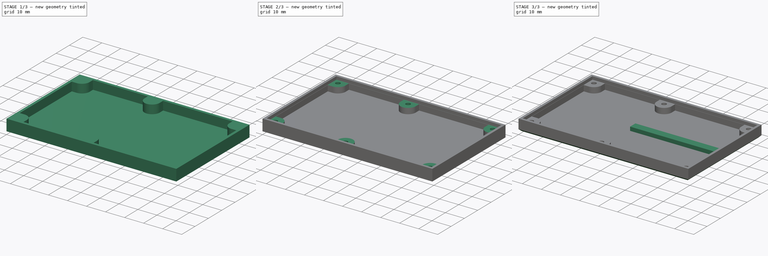
[diagram: build sequence overview — one tinted view per stage of 3, left to right]
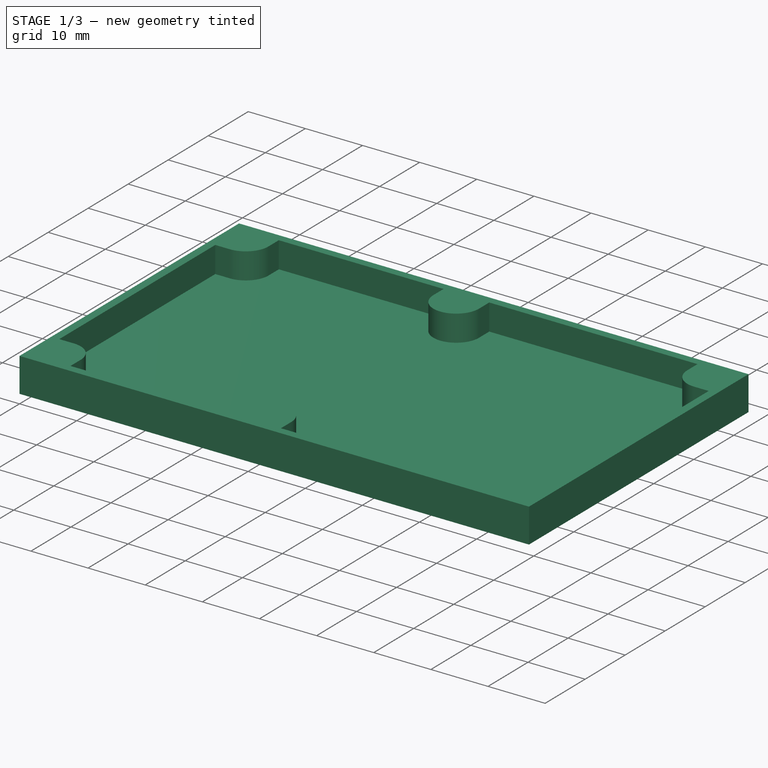
[diagram: stage 1 of 3 — iso view after this stage's code; geometry added in this stage tinted green]
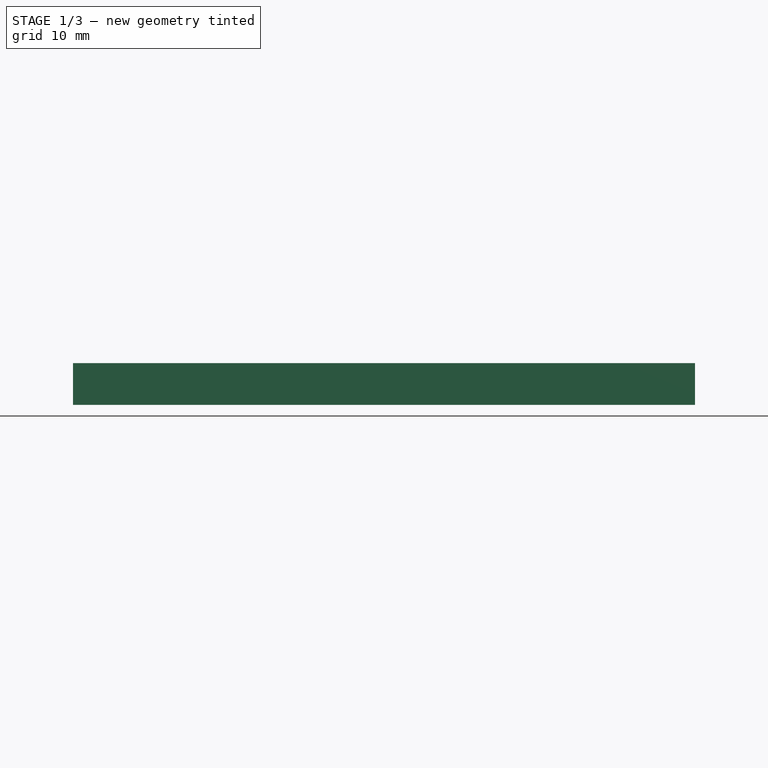
[diagram: stage 1 of 3 — front view after this stage's code; geometry added in this stage tinted green]
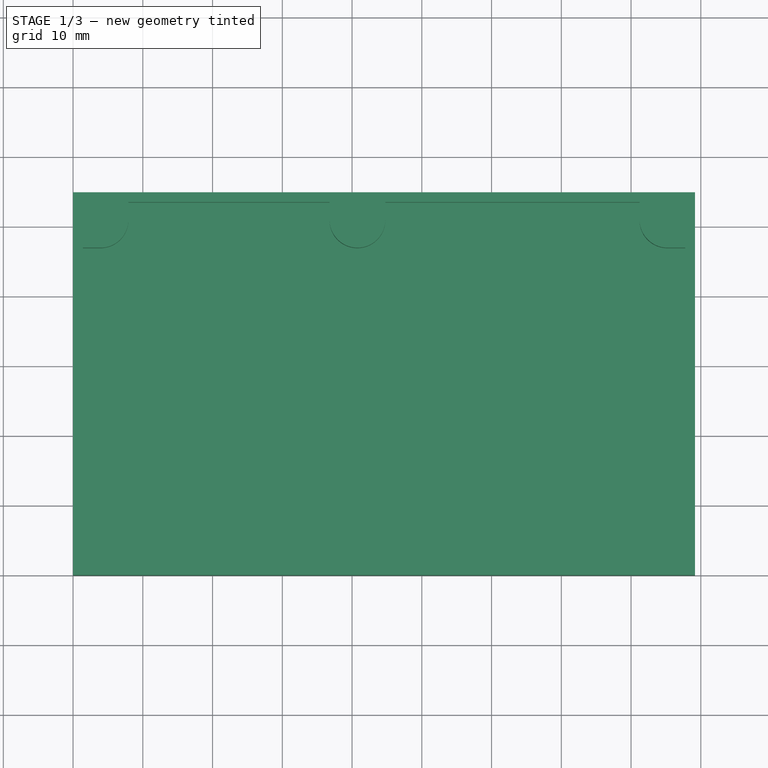
[diagram: stage 1 of 3 — top view after this stage's code; geometry added in this stage tinted green]
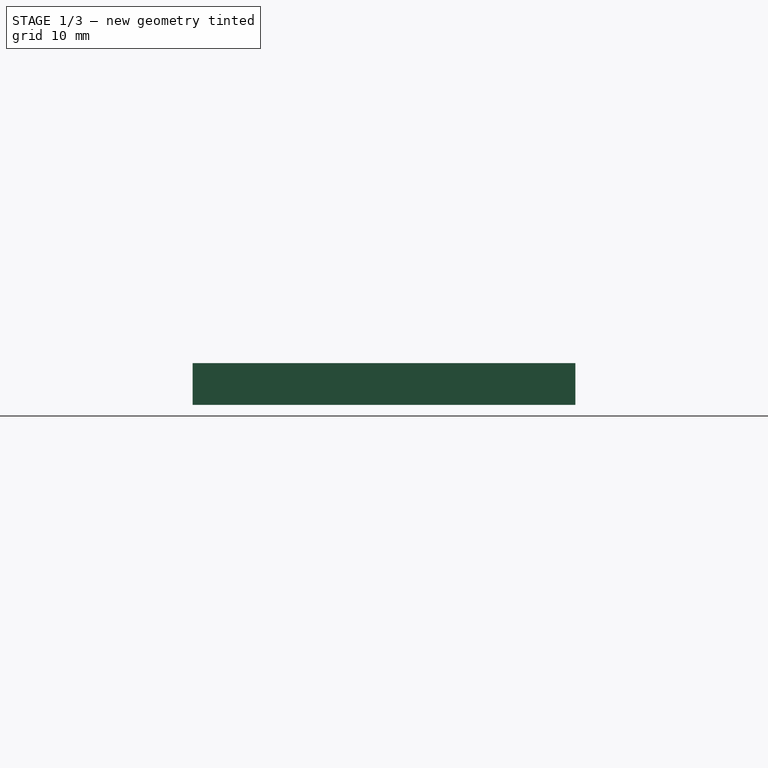
[diagram: stage 1 of 3 — right view after this stage's code; geometry added in this stage tinted green]
FCSTD DOCUMENT  (FreeCAD 0.16R6703 (Git))
Label: OneSLipoCaseBottom
License: All rights reserved
LicenseURL: http://en.wikipedia.org/wiki/All_rights_reserved
objects: Sketcher::SketchObject×6, PartDesign::Pocket×4, PartDesign::Pad×2, PartDesign::Chamfer×1
note: 19 computed .brp shape members not serialized (recipe doc carries the construction recipe); baked Part::Feature solids carry a one-line shape summary decoded from their .brp

FEATURE [Sketcher::SketchObject] Sketch
  sketch-geometry (4):
    g0: LineSegment StartX=0 StartY=0 StartZ=0 EndX=89.16 EndY=0 EndZ=0
    g1: LineSegment StartX=89.16 StartY=0 StartZ=0 EndX=89.16 EndY=54.87 EndZ=0
    g2: LineSegment StartX=89.16 StartY=54.87 StartZ=0 EndX=0 EndY=54.87 EndZ=0
    g3: LineSegment StartX=0 StartY=54.87 StartZ=0 EndX=0 EndY=0 EndZ=0
  constraints (11):
    c: Coincident(g0,g1)
    c: Coincident(g1,g2)
    c: Coincident(g2,g3)
    c: Coincident(g3,g0)
    c: Horizontal(g0)
    c: Horizontal(g2)
    c: Vertical(g1)
    c: Vertical(g3)
    c: Coincident(g0,g-1)
    c: DistanceX(g2,g2) = 89.16
    c: DistanceY(g1,g1) = 54.87
FEATURE [PartDesign::Pad] Pad
  Length = 6
  Length2 = 100
  Sketch = -> Sketch
  Type = 0
FEATURE [Sketcher::SketchObject] Sketch001
  Placement = pos=(0,0,6) rot=(0,0,1;0rad)
  Support = -> Pad [Face6]
  sketch-geometry (57):
    g0: ArcOfCircle CenterX=3.94 CenterY=50.93 CenterZ=0 NormalX=0 NormalY=0 NormalZ=1 Radius=4 StartAngle=4.71239 EndAngle=6.28319
    g1: ArcOfCircle CenterX=3.94 CenterY=3.94 CenterZ=0 NormalX=0 NormalY=0 NormalZ=1 Radius=4 StartAngle=0 EndAngle=1.5708
    g2: ArcOfCircle CenterX=40.77 CenterY=3.94 CenterZ=0 NormalX=0 NormalY=0 NormalZ=1 Radius=4 StartAngle=0 EndAngle=3.14159
    g3: ArcOfCircle CenterX=40.77 CenterY=50.93 CenterZ=0 NormalX=0 NormalY=0 NormalZ=1 Radius=4 StartAngle=3.14159 EndAngle=6.28319
    g4: ArcOfCircle CenterX=85.22 CenterY=50.93 CenterZ=0 NormalX=0 NormalY=0 NormalZ=1 Radius=4 StartAngle=3.14159 EndAngle=4.71239
    g5: ArcOfCircle CenterX=85.22 CenterY=3.94 CenterZ=0 NormalX=0 NormalY=0 NormalZ=1 Radius=4 StartAngle=1.5708 EndAngle=3.14159
    g6: LineSegment [constr] StartX=3.94 StartY=50.93 StartZ=0 EndX=7.94 EndY=50.93 EndZ=0
    g7: LineSegment [constr] StartX=7.94 StartY=50.93 StartZ=0 EndX=36.77 EndY=50.93 EndZ=0
    g8: LineSegment [constr] StartX=36.77 StartY=50.93 StartZ=0 EndX=40.77 EndY=50.93 EndZ=0
    g9: LineSegment [constr] StartX=40.77 StartY=50.93 StartZ=0 EndX=44.77 EndY=50.93 EndZ=0
    g10: LineSegment [constr] StartX=44.77 StartY=50.93 StartZ=0 EndX=81.22 EndY=50.93 EndZ=0
    g11: LineSegment [constr] StartX=81.22 StartY=50.93 StartZ=0 EndX=85.22 EndY=50.93 EndZ=0
    g12: LineSegment [constr] StartX=85.22 StartY=50.93 StartZ=0 EndX=85.22 EndY=46.93 EndZ=0
    g13: LineSegment [constr] StartX=85.22 StartY=46.93 StartZ=0 EndX=85.22 EndY=7.94 EndZ=0
    g14: LineSegment [constr] StartX=85.22 StartY=7.94 StartZ=0 EndX=85.22 EndY=3.94 EndZ=0
    g15: LineSegment [constr] StartX=85.22 StartY=3.94 StartZ=0 EndX=81.22 EndY=3.94 EndZ=0
    g16: LineSegment [constr] StartX=81.22 StartY=3.94 StartZ=0 EndX=44.77 EndY=3.94 EndZ=0
    g17: LineSegment [constr] StartX=44.77 StartY=3.94 StartZ=0 EndX=40.77 EndY=3.94 EndZ=0
    g18: LineSegment [constr] StartX=40.77 StartY=3.94 StartZ=0 EndX=36.77 EndY=3.94 EndZ=0
    g19: LineSegment [constr] StartX=36.77 StartY=3.94 StartZ=0 EndX=7.94 EndY=3.94 EndZ=0
    g20: LineSegment [constr] StartX=7.94 StartY=3.94 StartZ=0 EndX=3.94 EndY=3.94 EndZ=0
    g21: LineSegment [constr] StartX=3.94 StartY=3.94 StartZ=0 EndX=3.94 EndY=7.94 EndZ=0
    g22: LineSegment [constr] StartX=3.94 StartY=7.94 StartZ=0 EndX=3.94 EndY=46.93 EndZ=0
    g23: LineSegment [constr] StartX=3.94 StartY=46.93 StartZ=0 EndX=3.94 EndY=50.93 EndZ=0
    g24: LineSegment [constr] StartX=3.94 StartY=50.93 StartZ=0 EndX=1.4 EndY=50.93 EndZ=0
    g25: LineSegment [constr] StartX=1.4 StartY=50.93 StartZ=0 EndX=0 EndY=50.93 EndZ=0
    g26: LineSegment [constr] StartX=3.94 StartY=3.94 StartZ=0 EndX=3.94 EndY=1.4 EndZ=0
    g27: LineSegment [constr] StartX=3.94 StartY=1.4 StartZ=0 EndX=3.94 EndY=0 EndZ=0
    g28: LineSegment StartX=7.94 StartY=50.93 StartZ=0 EndX=7.94 EndY=53.47 EndZ=0
    g29: LineSegment StartX=7.94 StartY=53.47 StartZ=0 EndX=36.77 EndY=53.47 EndZ=0
    g30: LineSegment StartX=36.77 StartY=53.47 StartZ=0 EndX=36.77 EndY=50.93 EndZ=0
    g31: LineSegment StartX=7.94 StartY=3.94 StartZ=0 EndX=7.94 EndY=1.4 EndZ=0
    g32: LineSegment StartX=7.94 StartY=1.4 StartZ=0 EndX=36.77 EndY=1.4 EndZ=0
    g33: LineSegment StartX=36.77 StartY=1.4 StartZ=0 EndX=36.77 EndY=3.94 EndZ=0
    g34: LineSegment StartX=44.77 StartY=3.94 StartZ=0 EndX=44.77 EndY=1.4 EndZ=0
    g35: LineSegment StartX=44.77 StartY=1.4 StartZ=0 EndX=81.22 EndY=1.4 EndZ=0
    g36: LineSegment StartX=81.22 StartY=1.4 StartZ=0 EndX=81.22 EndY=3.94 EndZ=0
    g37: LineSegment StartX=3.94 StartY=46.93 StartZ=0 EndX=1.4 EndY=46.93 EndZ=0
    g38: LineSegment StartX=1.4 StartY=46.93 StartZ=0 EndX=1.4 EndY=7.94 EndZ=0
    g39: LineSegment StartX=1.4 StartY=7.94 StartZ=0 EndX=3.94 EndY=7.94 EndZ=0
    g40: LineSegment StartX=44.77 StartY=50.93 StartZ=0 EndX=44.77 EndY=53.47 EndZ=0
    g41: LineSegment StartX=44.77 StartY=53.47 StartZ=0 EndX=81.22 EndY=53.47 EndZ=0
    g42: LineSegment StartX=81.22 StartY=53.47 StartZ=0 EndX=81.22 EndY=50.93 EndZ=0
    g43: LineSegment StartX=85.22 StartY=46.93 StartZ=0 EndX=87.76 EndY=46.93 EndZ=0
    g44: LineSegment StartX=87.76 StartY=46.93 StartZ=0 EndX=87.76 EndY=7.94 EndZ=0
    g45: LineSegment StartX=87.76 StartY=7.94 StartZ=0 EndX=85.22 EndY=7.94 EndZ=0
    g46: LineSegment [constr] StartX=36.77 StartY=53.47 StartZ=0 EndX=44.77 EndY=53.47 EndZ=0
    g47: LineSegment [constr] StartX=44.77 StartY=1.4 StartZ=0 EndX=36.77 EndY=1.4 EndZ=0
    g48: LineSegment [constr] StartX=81.22 StartY=53.47 StartZ=0 EndX=87.76 EndY=53.47 EndZ=0
    g49: LineSegment [constr] StartX=87.76 StartY=53.47 StartZ=0 EndX=87.76 EndY=46.93 EndZ=0
    g50: LineSegment [constr] StartX=87.76 StartY=7.94 StartZ=0 EndX=87.76 EndY=1.4 EndZ=0
    g51: LineSegment [constr] StartX=87.76 StartY=1.4 StartZ=0 EndX=81.22 EndY=1.4 EndZ=0
    g52: LineSegment [constr] StartX=7.94 StartY=1.4 StartZ=0 EndX=1.4 EndY=1.4 EndZ=0
    g53: LineSegment [constr] StartX=1.4 StartY=7.94 StartZ=0 EndX=1.4 EndY=1.4 EndZ=0
    g54: LineSegment [constr] StartX=1.4 StartY=46.93 StartZ=0 EndX=1.4 EndY=53.47 EndZ=0
    g55: LineSegment [constr] StartX=1.4 StartY=53.47 StartZ=0 EndX=7.94 EndY=53.47 EndZ=0
    g56: LineSegment [constr] StartX=40.77 StartY=50.93 StartZ=0 EndX=40.77 EndY=3.94 EndZ=0
  constraints (153):
    c: Coincident(g6,g0)
    c: Coincident(g6,g0)
    c: Coincident(g6,g7)
    c: Coincident(g7,g3)
    c: Horizontal(g7)
    c: Coincident(g7,g8)
    c: Coincident(g8,g3)
    c: Horizontal(g8)
    c: Coincident(g8,g9)
    c: Coincident(g9,g3)
    c: Coincident(g9,g10)
    c: Coincident(g10,g4)
    c: Horizontal(g10)
    c: Coincident(g10,g11)
    c: Coincident(g11,g4)
    c: Horizontal(g11)
    c: Coincident(g11,g12)
    c: Coincident(g12,g4)
    c: Vertical(g12)
    c: Coincident(g12,g13)
    c: Coincident(g13,g5)
    c: Vertical(g13)
    c: Coincident(g13,g14)
    c: Coincident(g14,g5)
    c: Vertical(g14)
    c: Coincident(g14,g15)
    c: Coincident(g15,g5)
    c: Horizontal(g15)
    c: Coincident(g15,g16)
    c: Coincident(g16,g2)
    c: Coincident(g16,g17)
    c: Coincident(g17,g2)
    c: Coincident(g17,g18)
    c: Coincident(g18,g2)
    c: Coincident(g18,g19)
    c: Coincident(g19,g1)
    c: Horizontal(g19)
    c: Coincident(g19,g20)
    c: Coincident(g20,g1)
    c: Coincident(g20,g21)
    c: Coincident(g21,g1)
    c: Coincident(g21,g22)
    c: Coincident(g22,g0)
    c: Vertical(g22)
    c: Coincident(g22,g23)
    c: Coincident(g23,g6)
    c: Vertical(g23)
    c: Vertical(g21)
    c: Horizontal(g6)
    c: Horizontal(g9)
    c: Horizontal(g16)
    c: Horizontal(g17)
    c: Horizontal(g18)
    c: Horizontal(g20)
    c: Equal(g0,g3)
    c: Equal(g3,g4)
    c: Equal(g4,g5)
    c: Equal(g5,g2)
    c: Equal(g2,g1)
    c: Coincident(g24,g0)
    c: Horizontal(g24)
    c: Coincident(g25,g24)
    c: PointOnObject(g25,g-2)
    c: Horizontal(g25)
    c: DistanceX(g25,g25) = 1.4
    c: DistanceX(g24,g24) = 2.54
    c: DistanceX(g24,g3) = 39.37
    c: DistanceX(g24,g4) = 83.82
    c: Coincident(g26,g1)
    c: Vertical(g26)
    c: PointOnObject(g27,g-1)
    c: Vertical(g27)
    c: Coincident(g26,g27)
    c: DistanceY(g26,g26) = 2.54
    c: DistanceY(g26,g0) = 49.53
    c: Coincident(g28,g29)
    c: Horizontal(g29)
    c: Coincident(g29,g30)
    c: Coincident(g30,g3)
    c: Vertical(g30)
    c: Vertical(g28)
    c: Vertical(g31)
    c: Coincident(g31,g32)
    c: Horizontal(g32)
    c: Coincident(g32,g33)
    c: Coincident(g33,g2)
    c: Coincident(g31,g1)
    c: Vertical(g33)
    c: Vertical(g34)
    c: Coincident(g34,g35)
    c: Horizontal(g35)
    c: Coincident(g35,g36)
    c: Coincident(g36,g5)
    c: Vertical(g36)
    c: Coincident(g34,g2)
    c: Horizontal(g37)
    c: Coincident(g37,g38)
    c: Vertical(g38)
    c: Coincident(g38,g39)
    c: Coincident(g39,g1)
    c: Horizontal(g39)
    c: Coincident(g37,g0)
    c: Vertical(g40)
    c: Coincident(g40,g41)
    c: Horizontal(g41)
    c: Coincident(g41,g42)
    c: Coincident(g42,g4)
    c: Vertical(g42)
    c: Coincident(g40,g3)
    c: Horizontal(g43)
    c: Coincident(g43,g44)
    c: Vertical(g44)
    c: Coincident(g44,g45)
    c: Coincident(g45,g5)
    c: Horizontal(g45)
    c: Coincident(g43,g4)
    c: Coincident(g46,g29)
    c: Coincident(g46,g40)
    c: Horizontal(g46)
    c: Coincident(g47,g34)
    c: Coincident(g47,g32)
    c: Horizontal(g47)
    c: Coincident(g48,g41)
    c: Horizontal(g48)
    c: Coincident(g49,g48)
    c: Coincident(g49,g43)
    c: Vertical(g49)
    c: Coincident(g50,g44)
    c: Vertical(g50)
    c: Coincident(g51,g50)
    c: Coincident(g51,g35)
    c: Horizontal(g51)
    c: Coincident(g52,g31)
    c: Horizontal(g52)
    c: Coincident(g53,g38)
    c: Coincident(g53,g52)
    c: Vertical(g53)
    c: Coincident(g54,g37)
    c: Vertical(g54)
    c: Coincident(g55,g54)
    c: Coincident(g55,g28)
    c: Horizontal(g55)
    c: Equal(g28,g37)
    c: Equal(g37,g36)
    c: Equal(g36,g45)
    c: DistanceY(g52,g54) = 52.07
    c: DistanceX(g54,g48) = 86.36
    c: DistanceY(g27,g27) = 1.4
    c: Coincident(g0,g28)
    c: Radius(g0) = 4
    c: Coincident(g56,g3)
    c: Coincident(g56,g2)
    c: Vertical(g56)
FEATURE [PartDesign::Pocket] Pocket
  Length = 4.6
  Sketch = -> Sketch001
  Type = 0
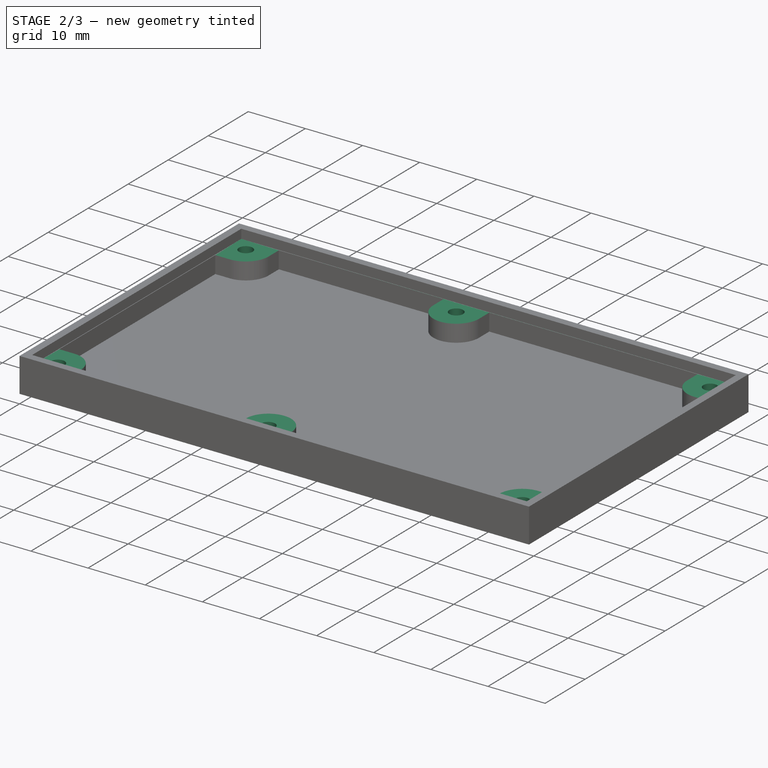
[diagram: stage 2 of 3 — iso view after this stage's code; geometry added in this stage tinted green]
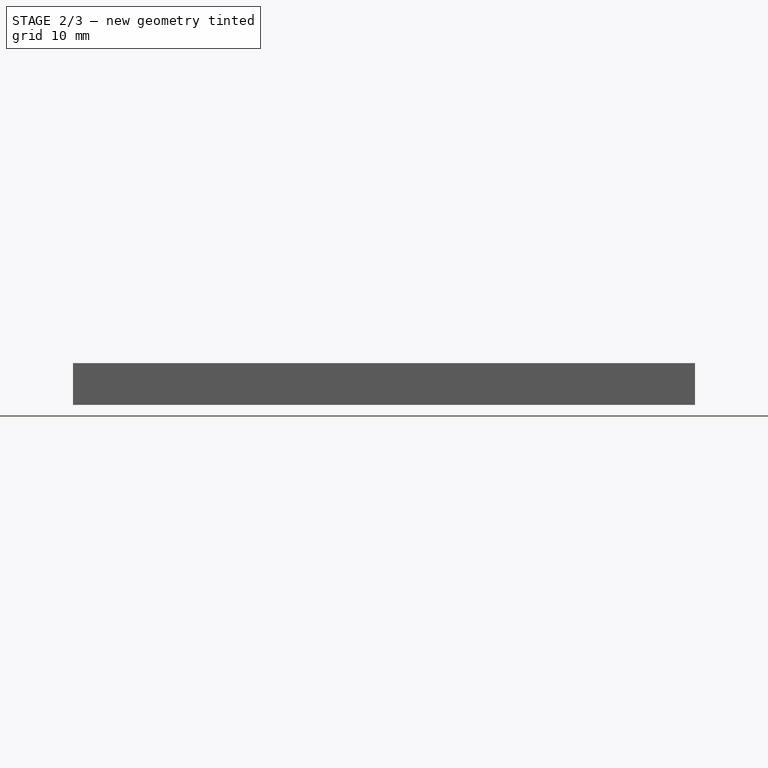
[diagram: stage 2 of 3 — front view after this stage's code; geometry added in this stage tinted green]
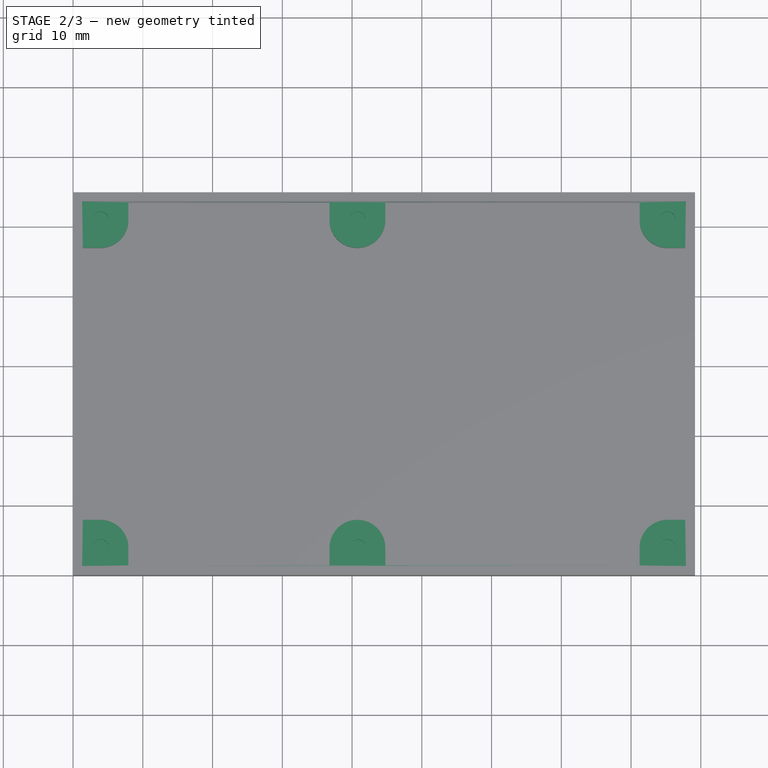
[diagram: stage 2 of 3 — top view after this stage's code; geometry added in this stage tinted green]
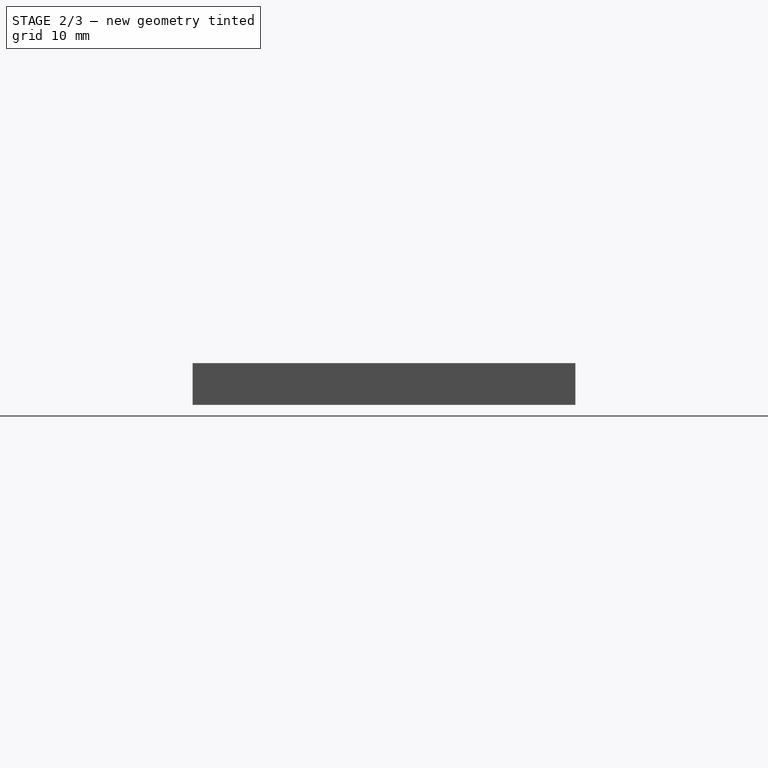
[diagram: stage 2 of 3 — right view after this stage's code; geometry added in this stage tinted green]
FEATURE [Sketcher::SketchObject] Sketch002
  Placement = pos=(0,0,6) rot=(0,0,1;0rad)
  Support = -> Pocket [Face5]
  sketch-geometry (6):
    g0: LineSegment StartX=1.3 StartY=53.57 StartZ=0 EndX=87.86 EndY=53.57 EndZ=0
    g1: LineSegment StartX=87.86 StartY=53.57 StartZ=0 EndX=87.86 EndY=1.3 EndZ=0
    g2: LineSegment StartX=87.86 StartY=1.3 StartZ=0 EndX=1.3 EndY=1.3 EndZ=0
    g3: LineSegment StartX=1.3 StartY=1.3 StartZ=0 EndX=1.3 EndY=53.57 EndZ=0
    g4: LineSegment [constr] StartX=1.3 StartY=1.3 StartZ=0 EndX=1.3 EndY=0 EndZ=0
    g5: LineSegment [constr] StartX=1.3 StartY=1.3 StartZ=0 EndX=0 EndY=1.3 EndZ=0
  constraints (18):
    c: Coincident(g0,g1)
    c: Coincident(g1,g2)
    c: Coincident(g2,g3)
    c: Coincident(g3,g0)
    c: Horizontal(g0)
    c: Horizontal(g2)
    c: Vertical(g1)
    c: Vertical(g3)
    c: Coincident(g4,g2)
    c: PointOnObject(g4,g-1)
    c: Vertical(g4)
    c: Coincident(g5,g2)
    c: PointOnObject(g5,g-2)
    c: Horizontal(g5)
    c: Equal(g5,g4)
    c: DistanceY(g4,g4) = 1.3
    c: DistanceY(g3,g3) = 52.27
    c: DistanceX(g2,g2) = 86.56
FEATURE [PartDesign::Pocket] Pocket001
  Length = 1.6
  Sketch = -> Sketch002
  Type = 0
FEATURE [Sketcher::SketchObject] Sketch004  label="Sketch003"
  Placement = pos=(0,0,4.4) rot=(0,0,1;0rad)
  Support = -> Pocket001 [Face11]
  sketch-geometry (17):
    g0: Circle CenterX=3.94 CenterY=50.93 CenterZ=0 NormalX=0 NormalY=0 NormalZ=1 Radius=1.2
    g1: Circle CenterX=40.77 CenterY=50.93 CenterZ=0 NormalX=0 NormalY=0 NormalZ=1 Radius=1.2
    g2: Circle CenterX=85.22 CenterY=50.93 CenterZ=0 NormalX=0 NormalY=0 NormalZ=1 Radius=1.2
    g3: Circle CenterX=85.22 CenterY=3.94 CenterZ=0 NormalX=0 NormalY=0 NormalZ=1 Radius=1.2
    g4: Circle CenterX=40.77 CenterY=3.94 CenterZ=0 NormalX=0 NormalY=0 NormalZ=1 Radius=1.2
    g5: Circle CenterX=3.94 CenterY=3.94 CenterZ=0 NormalX=0 NormalY=0 NormalZ=1 Radius=1.2
    g6: LineSegment [constr] StartX=3.94 StartY=50.93 StartZ=0 EndX=40.77 EndY=50.93 EndZ=0
    g7: LineSegment [constr] StartX=40.77 StartY=50.93 StartZ=0 EndX=85.22 EndY=50.93 EndZ=0
    g8: LineSegment [constr] StartX=85.22 StartY=50.93 StartZ=0 EndX=85.22 EndY=3.94 EndZ=0
    g9: LineSegment [constr] StartX=85.22 StartY=3.94 StartZ=0 EndX=40.77 EndY=3.94 EndZ=0
    g10: LineSegment [constr] StartX=40.77 StartY=3.94 StartZ=0 EndX=3.94 EndY=3.94 EndZ=0
    g11: LineSegment [constr] StartX=3.94 StartY=3.94 StartZ=0 EndX=3.94 EndY=50.93 EndZ=0
    g12: LineSegment [constr] StartX=40.77 StartY=50.93 StartZ=0 EndX=40.77 EndY=3.94 EndZ=0
    g13: LineSegment [constr] StartX=3.94 StartY=50.93 StartZ=0 EndX=1.4 EndY=50.93 EndZ=0
    g14: LineSegment [constr] StartX=1.4 StartY=50.93 StartZ=0 EndX=0 EndY=50.93 EndZ=0
    g15: LineSegment [constr] StartX=3.94 StartY=3.94 StartZ=0 EndX=3.94 EndY=1.4 EndZ=0
    g16: LineSegment [constr] StartX=3.94 StartY=1.4 StartZ=0 EndX=3.94 EndY=0 EndZ=0
  constraints (44):
    c: Equal(g5,g4)
    c: Equal(g4,g3)
    c: Equal(g3,g2)
    c: Equal(g2,g1)
    c: Equal(g1,g0)
    c: Coincident(g6,g0)
    c: Coincident(g6,g1)
    c: Horizontal(g6)
    c: Coincident(g6,g7)
    c: Coincident(g7,g2)
    c: Horizontal(g7)
    c: Coincident(g7,g8)
    c: Coincident(g8,g3)
    c: Vertical(g8)
    c: Coincident(g8,g9)
    c: Coincident(g9,g4)
    c: Horizontal(g9)
    c: Coincident(g9,g10)
    c: Coincident(g10,g5)
    c: Horizontal(g10)
    c: Coincident(g10,g11)
    c: Coincident(g11,g6)
    c: Vertical(g11)
    c: Coincident(g12,g1)
    c: Coincident(g12,g4)
    c: Vertical(g12)
    c: Horizontal(g13)
    c: Coincident(g13,g14)
    c: PointOnObject(g14,g-2)
    c: Horizontal(g14)
    c: DistanceX(g13,g13) = 2.54
    c: DistanceX(g13,g1) = 39.37
    c: DistanceX(g13,g2) = 83.82
    c: Radius(g2) = 1.2
    c: Coincident(g13,g0)
    c: DistanceX(g14,g14) = 1.4
    c: Coincident(g15,g5)
    c: Vertical(g15)
    c: Coincident(g16,g15)
    c: PointOnObject(g16,g-1)
    c: Vertical(g16)
    c: DistanceY(g15,g15) = 2.54
    c: DistanceY(g16,g16) = 1.4
    c: DistanceY(g15,g0) = 49.53
FEATURE [PartDesign::Pocket] Pocket002
  Length = 2.2
  Sketch = -> Sketch004
  Type = 0
FEATURE [Sketcher::SketchObject] Sketch003  label="Sketch005"
  Placement = pos=(0,0,0) rot=(1,0,0;3.14159rad)
  Support = -> Pocket002 [Face4]
  sketch-geometry (17):
    g0: Circle CenterX=3.94 CenterY=-3.94 CenterZ=0 NormalX=0 NormalY=0 NormalZ=1 Radius=2.1
    g1: Circle CenterX=40.77 CenterY=-3.94 CenterZ=0 NormalX=0 NormalY=0 NormalZ=1 Radius=2.1
    g2: Circle CenterX=85.22 CenterY=-3.94 CenterZ=0 NormalX=0 NormalY=0 NormalZ=1 Radius=2.1
    g3: Circle CenterX=85.22 CenterY=-50.93 CenterZ=0 NormalX=0 NormalY=0 NormalZ=1 Radius=2.1
    g4: Circle CenterX=40.77 CenterY=-50.93 CenterZ=0 NormalX=0 NormalY=0 NormalZ=1 Radius=2.1
    g5: Circle CenterX=3.94 CenterY=-50.93 CenterZ=0 NormalX=0 NormalY=0 NormalZ=1 Radius=2.1
    g6: LineSegment [constr] StartX=3.94 StartY=-3.94 StartZ=0 EndX=40.77 EndY=-3.94 EndZ=0
    g7: LineSegment [constr] StartX=40.77 StartY=-3.94 StartZ=0 EndX=85.22 EndY=-3.94 EndZ=0
    g8: LineSegment [constr] StartX=85.22 StartY=-3.94 StartZ=0 EndX=85.22 EndY=-50.93 EndZ=0
    g9: LineSegment [constr] StartX=85.22 StartY=-50.93 StartZ=0 EndX=40.77 EndY=-50.93 EndZ=0
    g10: LineSegment [constr] StartX=40.77 StartY=-50.93 StartZ=0 EndX=3.94 EndY=-50.93 EndZ=0
    g11: LineSegment [constr] StartX=3.94 StartY=-50.93 StartZ=0 EndX=3.94 EndY=-3.94 EndZ=0
    g12: LineSegment [constr] StartX=40.77 StartY=-3.94 StartZ=0 EndX=40.77 EndY=-50.93 EndZ=0
    g13: LineSegment [constr] StartX=3.94 StartY=0 StartZ=0 EndX=3.94 EndY=-1.4 EndZ=0
    g14: LineSegment [constr] StartX=3.94 StartY=-1.4 StartZ=0 EndX=3.94 EndY=-3.94 EndZ=0
    g15: LineSegment [constr] StartX=3.94 StartY=-3.94 StartZ=0 EndX=1.4 EndY=-3.94 EndZ=0
    g16: LineSegment [constr] StartX=1.4 StartY=-3.94 StartZ=0 EndX=0 EndY=-3.94 EndZ=0
  constraints (44):
    c: Equal(g5,g4)
    c: Equal(g4,g3)
    c: Equal(g3,g2)
    c: Equal(g2,g1)
    c: Equal(g1,g0)
    c: Coincident(g6,g0)
    c: Coincident(g6,g1)
    c: Horizontal(g6)
    c: Coincident(g6,g7)
    c: Coincident(g7,g2)
    c: Horizontal(g7)
    c: Coincident(g7,g8)
    c: Coincident(g8,g3)
    c: Vertical(g8)
    c: Coincident(g8,g9)
    c: Coincident(g9,g4)
    c: Horizontal(g9)
    c: Coincident(g9,g10)
    c: Coincident(g10,g5)
    c: Horizontal(g10)
    c: Coincident(g10,g11)
    c: Coincident(g11,g6)
    c: Vertical(g11)
    c: Coincident(g12,g1)
    c: Coincident(g12,g4)
    c: Vertical(g12)
    c: PointOnObject(g13,g-1)
    c: Vertical(g13)
    c: Coincident(g13,g14)
    c: Coincident(g14,g0)
    c: Vertical(g14)
    c: Coincident(g14,g15)
    c: Horizontal(g15)
    c: Coincident(g15,g16)
    c: PointOnObject(g16,g-2)
    c: Equal(g16,g13)
    c: Horizontal(g16)
    c: DistanceY(g13,g13) = 1.4
    c: DistanceY(g14,g14) = 2.54
    c: DistanceY(g5,g13) = 49.53
    c: DistanceX(g15,g15) = 2.54
    c: DistanceX(g15,g1) = 39.37
    c: DistanceX(g15,g2) = 83.82
    c: Radius(g2) = 2.1
FEATURE [PartDesign::Pocket] Pocket003
  Length = 2
  Sketch = -> Sketch003
  Type = 0
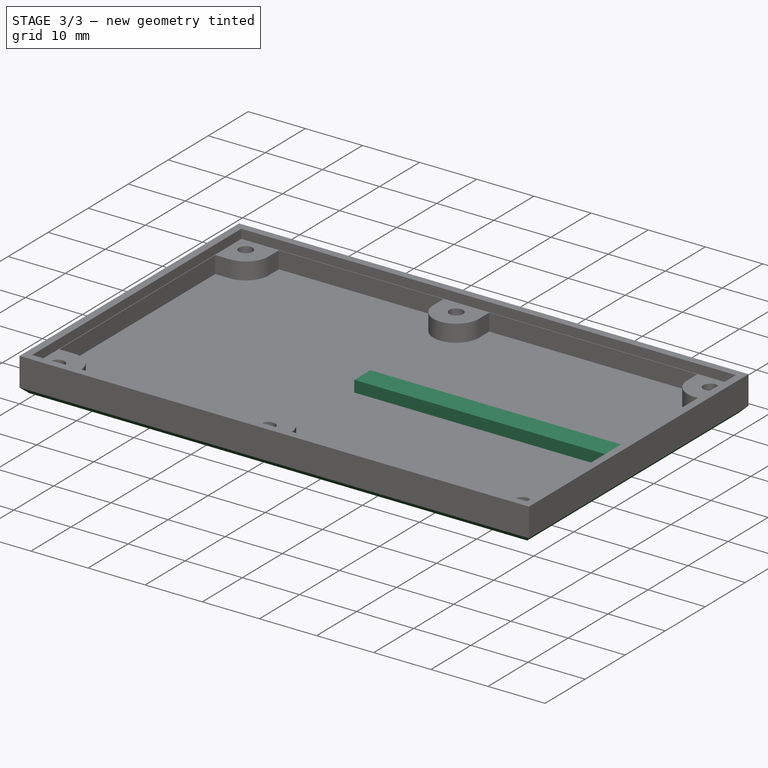
[diagram: stage 3 of 3 — iso view after this stage's code; geometry added in this stage tinted green]
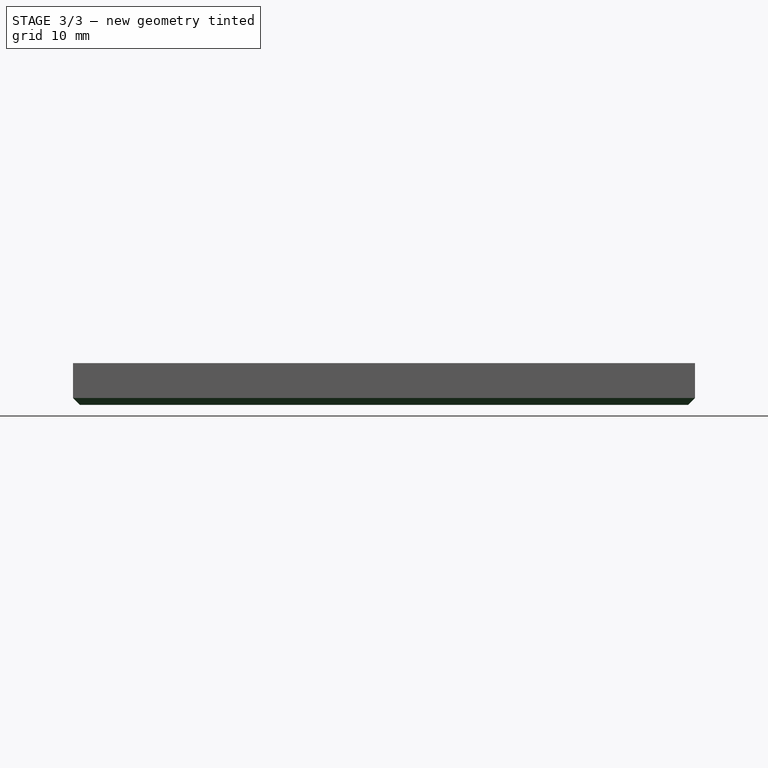
[diagram: stage 3 of 3 — front view after this stage's code; geometry added in this stage tinted green]
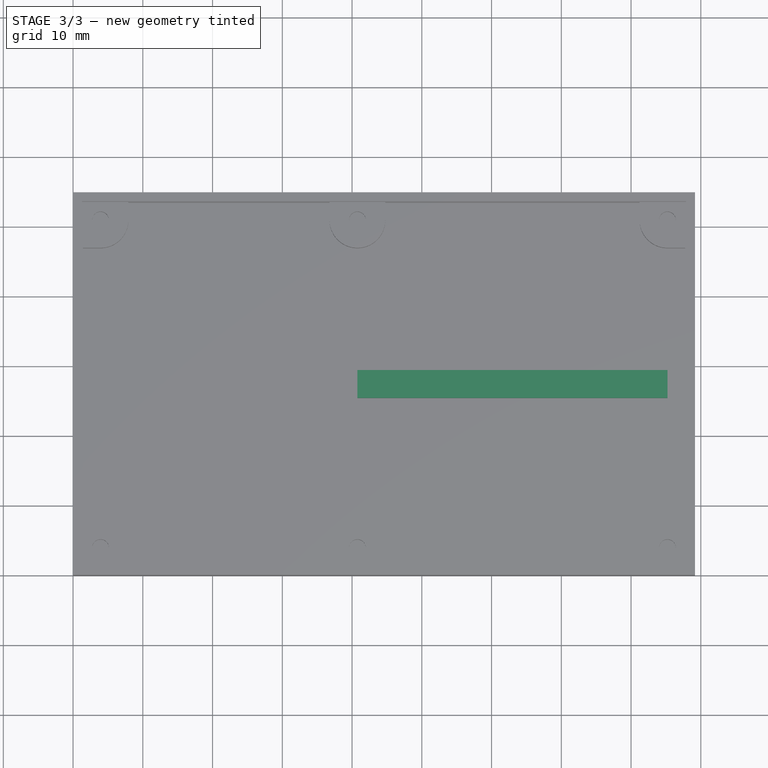
[diagram: stage 3 of 3 — top view after this stage's code; geometry added in this stage tinted green]
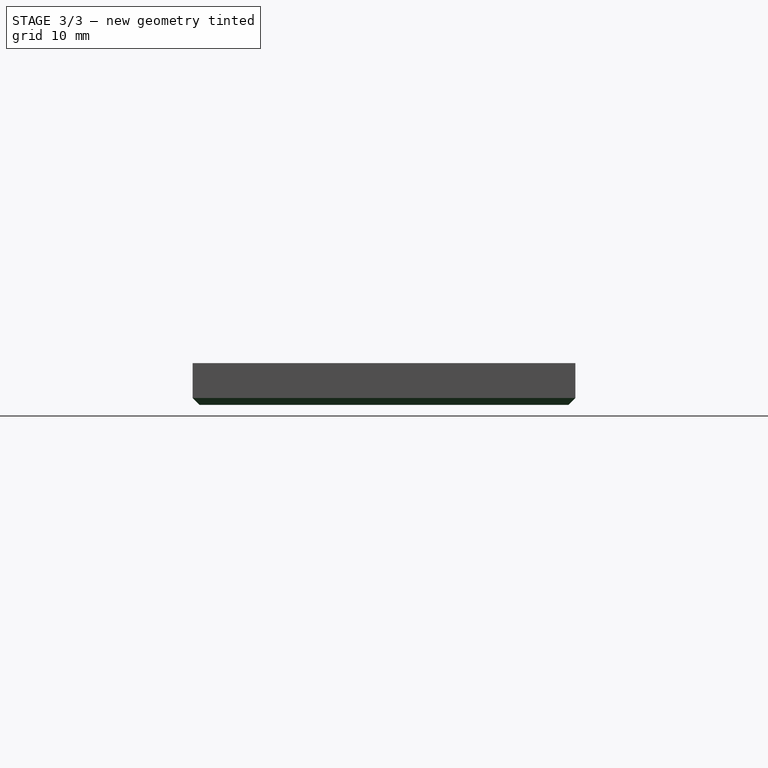
[diagram: stage 3 of 3 — right view after this stage's code; geometry added in this stage tinted green]
FEATURE [Sketcher::SketchObject] Sketch005  label="Sketch006"
  ExternalGeometry = -> [Pocket003]
  Placement = pos=(0,0,1.4) rot=(0,0,1;0rad)
  Support = -> Pocket003 [Face55]
  sketch-geometry (8):
    g0: LineSegment StartX=40.77 StartY=29.435 StartZ=0 EndX=85.22 EndY=29.435 EndZ=0
    g1: LineSegment StartX=85.22 StartY=29.435 StartZ=0 EndX=85.22 EndY=25.435 EndZ=0
    g2: LineSegment StartX=85.22 StartY=25.435 StartZ=0 EndX=40.77 EndY=25.435 EndZ=0
    g3: LineSegment StartX=40.77 StartY=25.435 StartZ=0 EndX=40.77 EndY=29.435 EndZ=0
    g4: LineSegment [constr] StartX=85.22 StartY=50.93 StartZ=0 EndX=85.22 EndY=29.435 EndZ=0
    g5: LineSegment [constr] StartX=85.22 StartY=25.435 StartZ=0 EndX=85.22 EndY=3.94 EndZ=0
    g6: LineSegment [constr] StartX=40.77 StartY=50.93 StartZ=0 EndX=40.77 EndY=29.435 EndZ=0
    g7: LineSegment [constr] StartX=40.77 StartY=25.435 StartZ=0 EndX=40.77 EndY=3.94 EndZ=0
  constraints (21):
    c: Coincident(g0,g1)
    c: Coincident(g1,g2)
    c: Coincident(g2,g3)
    c: Coincident(g3,g0)
    c: Horizontal(g0)
    c: Horizontal(g2)
    c: Vertical(g1)
    c: Vertical(g3)
    c: Coincident(g4,g-7)
    c: Coincident(g4,g0)
    c: Vertical(g4)
    c: Coincident(g5,g-4)
    c: Vertical(g5)
    c: Coincident(g1,g5)
    c: Coincident(g6,g-6)
    c: Coincident(g6,g0)
    c: Vertical(g6)
    c: Coincident(g7,g2)
    c: Coincident(g7,g-5)
    c: Equal(g7,g6)
    c: DistanceY(g1,g1) = 4
FEATURE [PartDesign::Pad] Pad001
  Length = 2
  Length2 = 100
  Sketch = -> Sketch005
  Type = 0
FEATURE [PartDesign::Chamfer] Chamfer
  Base = -> Pad001 [Edge11,Edge9,Edge6,Edge3]
  Size = 1
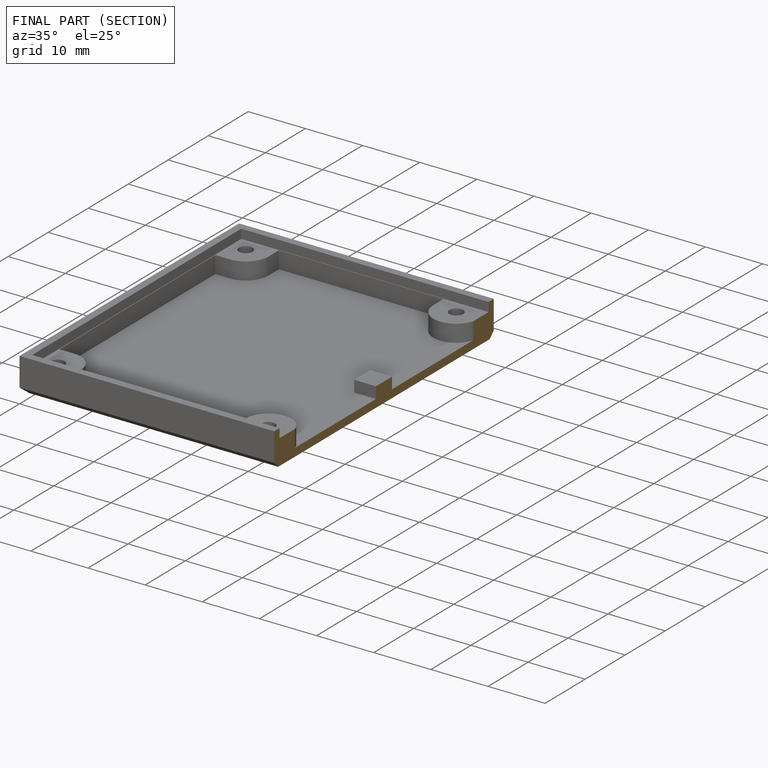
[diagram: finished part — half-section view (interior)]
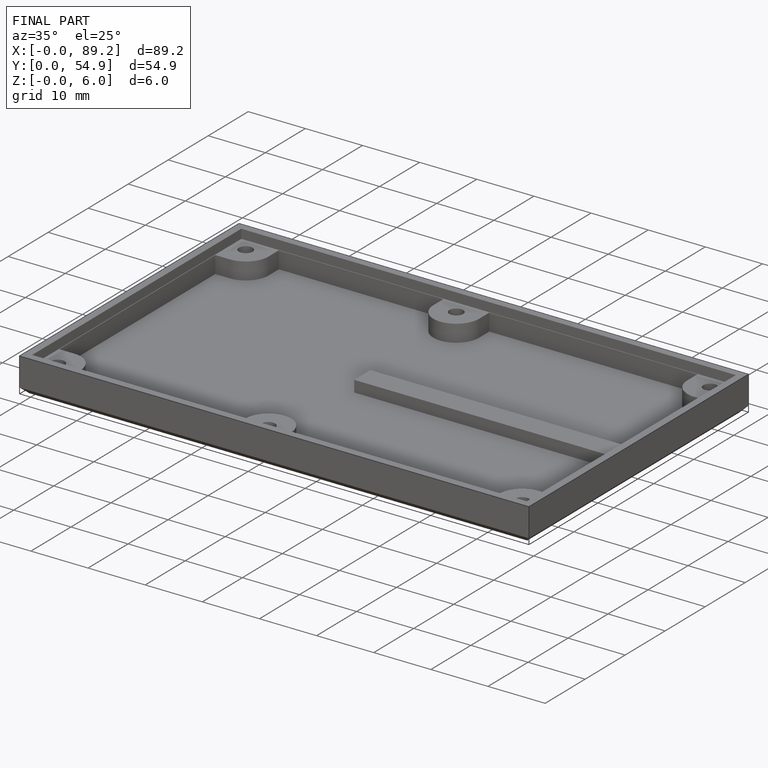
[diagram: finished part — iso view with bounding-box wireframe]
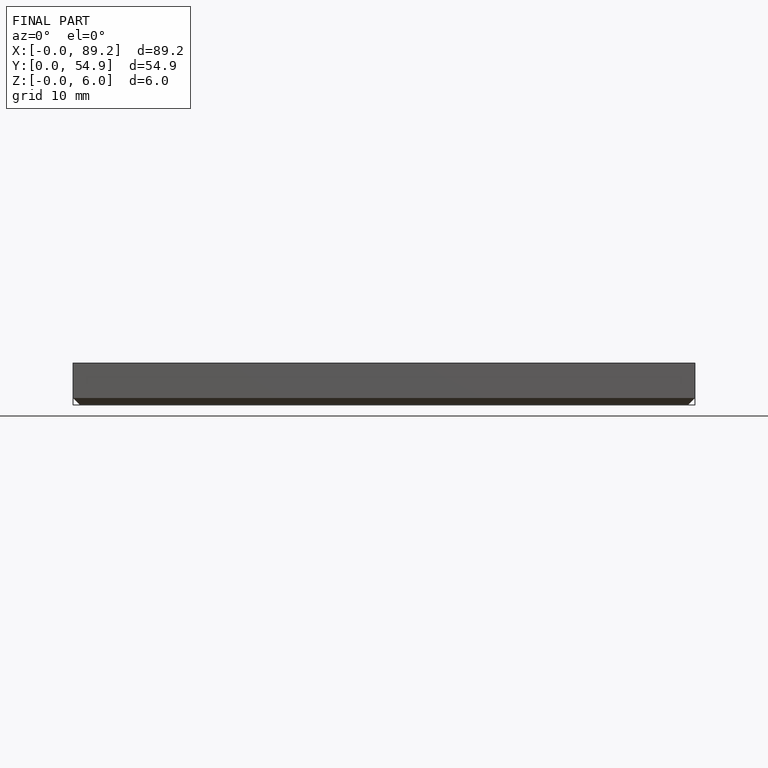
[diagram: finished part — front view with bounding-box wireframe]
